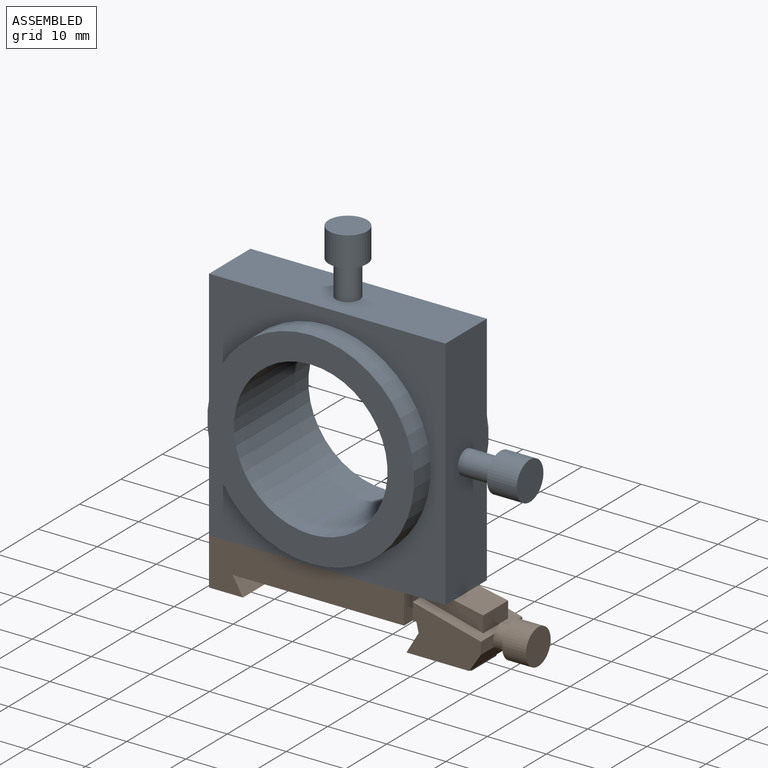
[diagram: assembled view]
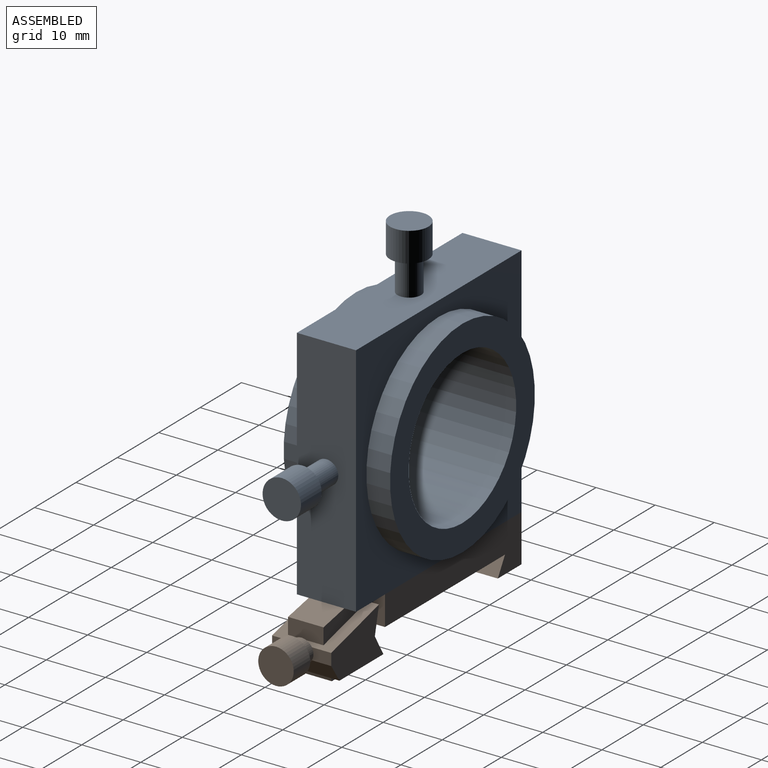
[diagram: assembled view, second angle]
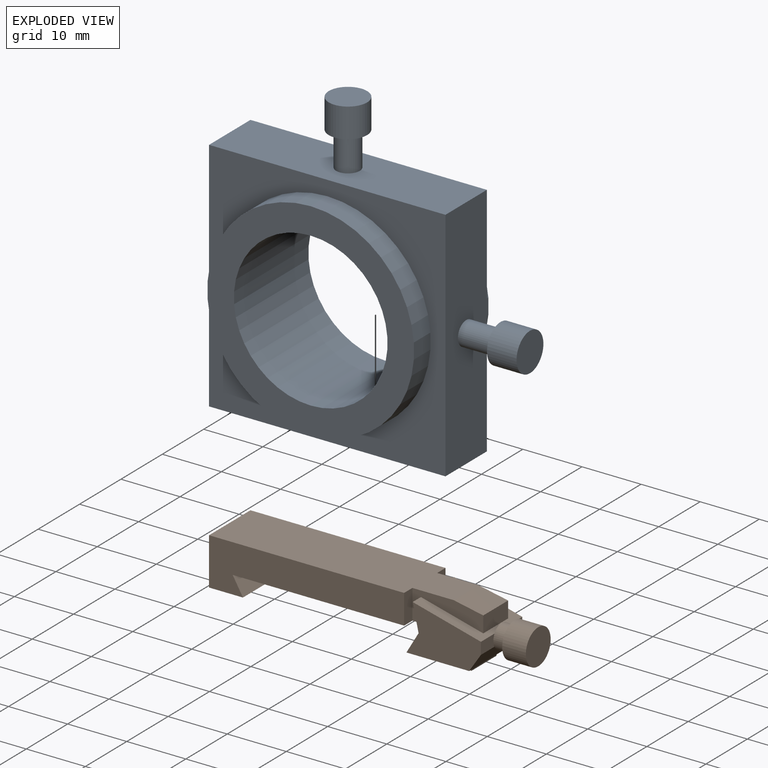
[diagram: exploded view]
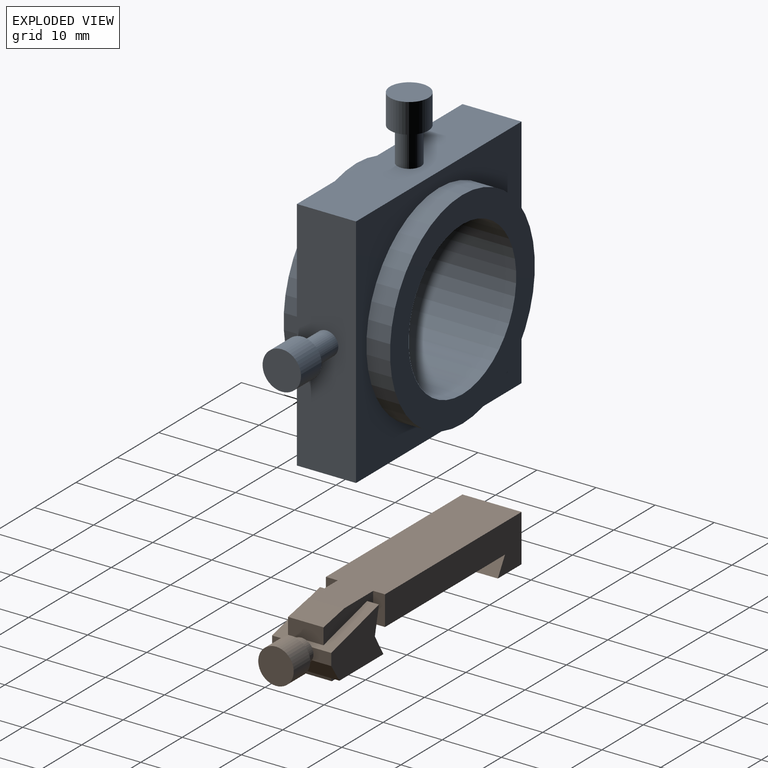
[diagram: exploded view, second angle]
ASSEMBLY  parts=2 mates=3
PART A: 25 faces, bbox 50.8x18x50.8 mm
  f0: cylinder r=2mm len=5.8mm, axis (-1,0,0), area 72.9mm2, adj f2,f23
  f1: cylinder r=2mm len=5.8mm, axis (0,0,-1), area 72.9mm2, adj f3,f20
  f2: plane 40x10mm, normal (1,0,0), area 387.4mm2, adj f0,f3,f5,f6,f7
  f3: plane 40x10mm, normal (0,0,1), area 387.4mm2, adj f1,f2,f4,f6,f7
  f4: plane 40x10mm, normal (-1,0,0), area 400mm2, adj f3,f5,f6,f7
  f5: plane 40x10mm, normal (0,0,-1), area 384.8mm2, adj f2,f4,f6,f7,f14,f16,f18
  f6: plane 40x40mm, normal (0,-1,0), area 637.9mm2, adj f2,f3,f4,f5,f11
  f7: plane 40x40mm, normal (0,1,0), area 637.9mm2, adj f2,f3,f4,f5,f9
  f8: plane 35x35mm, normal (0,1,0), area 431.2mm2, adj f9,f10
  f9: cylinder r=17.5mm len=35mm, axis (0,1,0), area 439.8mm2, adj f7,f8
  f10: cylinder r=13mm len=26mm, axis (0,1,0), area 1470.3mm2, adj f8,f12
  f11: cylinder r=17.5mm len=35mm, axis (0,1,0), area 439.8mm2, adj f6,f12
  f12: plane 35x35mm, normal (0,-1,0), area 431.2mm2, adj f10,f11
  f13: cone r=0mm half-angle=59deg, axis (0,0,-1), area 10mm2, adj f14
  f14: cylinder r=1.65mm len=5mm, axis (0,0,-1), area 51.8mm2, adj f5,f13
  f15: cone r=0mm half-angle=59deg, axis (0,0,-1), area 3.9mm2, adj f16
  f16: cylinder r=1.03mm len=4.7mm, axis (0,0,-1), area 30.3mm2, adj f5,f15
  f17: cone r=0mm half-angle=59deg, axis (0,0,-1), area 3.9mm2, adj f18
  f18: cylinder r=1.03mm len=4.7mm, axis (0,0,-1), area 30.3mm2, adj f5,f17
  f19: cylinder r=3.25mm len=6.5mm, axis (0,0,1), area 102.1mm2, adj f20,f21
  f20: plane 6.5x6.5mm, normal (0,0,-1), area 20.6mm2, adj f1,f19
  f21: plane 6.5x6.5mm, normal (0,0,1), area 33.2mm2, adj f19
  f22: cylinder r=3.25mm len=6.5mm, axis (1,0,0), area 102.1mm2, adj f23,f24
  f23: plane 6.5x6.5mm, normal (-1,0,0), area 20.6mm2, adj f0,f22
  f24: plane 6.5x6.5mm, normal (1,0,0), area 33.2mm2, adj f22
PART B: 33 faces, bbox 52.2x10x10 mm
  f0: cylinder r=2mm len=4mm, axis (-1,0,0), area 27.6mm2, adj f1,f20,f28,f29,f31
  f1: plane 3.27x2mm, normal (1,0,0), area 6.2mm2, adj f0,f15,f19,f22
  f2: plane 12x5mm, normal (0,1,0), area 31.5mm2, adj f4,f5,f7,f11,f13,f15,f16
  f3: plane 12x5mm, normal (0,-1,0), area 31.5mm2, adj f4,f5,f7,f11,f14,f15,f16
  f4: plane 6x2.74mm, normal (1,0,0), area 16.4mm2, adj f2,f3,f5,f15
  f5: plane 6x5mm, normal (0.2,0,0.98), area 30.6mm2, adj f2,f3,f4,f7
  f6: plane 33x8mm, normal (0,-1,0), area 179.6mm2, adj f7,f8,f9,f10,f11,f14
  f7: plane 40x10mm, normal (0,0,1), area 372mm2, adj f2,f3,f5,f6,f8,f12,f13,f14
  f8: plane 10x8mm, normal (-1,0,0), area 80mm2, adj f6,f7,f9,f12
  f9: plane 10x5.73mm, normal (0,0,-1), area 57.3mm2, adj f6,f8,f10,f12
  f10: plane 10x3mm, normal (0.87,0,0.5), area 34.6mm2, adj f6,f9,f11,f12
  f11: plane 31.34x10mm, normal (0,0,-1), area 304.1mm2, adj f2,f3,f6,f10,f12,f13,f14,f16
  f12: plane 33x8mm, normal (0,1,0), area 179.6mm2, adj f7,f8,f9,f10,f11,f13
  f13: plane 5x2mm, normal (1,0,0), area 10mm2, adj f2,f7,f11,f12
  f14: plane 5x2mm, normal (1,0,0), area 10mm2, adj f3,f6,f7,f11
  f15: plane 11.55x10mm, normal (0.25,0,0.97), area 53.9mm2, adj f1,f2,f3,f4,f16,f20,f21,f22
  f16: plane 10x4.5mm, normal (-0.98,0,-0.22), area 21.5mm2, adj f2,f3,f11,f15,f17,f21,f22
  f17: plane 10x3.5mm, normal (-0.86,0,0.51), area 40.6mm2, adj f16,f18,f21,f22
  f18: plane 10.6x10mm, normal (0,0,-1), area 74mm2, adj f17,f19,f21,f22,f24,f25,f26,f27
  f19: plane 10x3mm, normal (0.83,0,-0.55), area 36.1mm2, adj f1,f18,f20,f21,f22,f28
  f20: plane 3.27x2mm, normal (1,0,0), area 6.2mm2, adj f0,f15,f19,f21
  f21: plane 12.6x8mm, normal (0,-1,0), area 69.9mm2, adj f15,f16,f17,f18,f19,f20
  f22: plane 12.6x8mm, normal (0,1,0), area 69.9mm2, adj f1,f15,f16,f17,f18,f19
  f23: plane 6x5mm, normal (0,0,-1), area 30mm2, adj f24,f25,f26,f27
  f24: plane 5.33x1mm, normal (0,-1,0), area 5.2mm2, adj f18,f23,f26,f27
  f25: plane 5.33x1mm, normal (0,1,0), area 5.2mm2, adj f18,f23,f26,f27
  f26: plane 6x1mm, normal (0.95,0,-0.32), area 6.3mm2, adj f18,f23,f24,f25
  f27: plane 6x1mm, normal (-1,0,0), area 6mm2, adj f18,f23,f24,f25
  f28: plane 3.46x1mm, normal (-1,0,0), area 2.5mm2, adj f0,f19
  f29: plane 3.46x1mm, normal (-1,0,0), area 2.5mm2, adj f0,f15
  f30: cylinder r=3mm len=6mm, axis (1,0,0), area 75.4mm2, adj f31,f32
  f31: plane 6x6mm, normal (-1,0,0), area 15.7mm2, adj f0,f30
  f32: plane 6x6mm, normal (1,0,0), area 28.3mm2, adj f30
PLACE A t=(-0.58,0.01,-0.02)mm fixed
PLACE B t=(-0.58,0.01,-23.02)mm
MATE planar A.f5 <-> B.f7  axis (0,0,-1) through (19.42,-4.99,-20.02)mm
MATE planar B.f6 <-> A.f6  axis (0,-1,0) through (-5.22,-4.99,-22.85)mm
MATE planar A.f0 <-> B.f8  axis (-1,0,0) through (-20.58,0.01,-0.02)mm
